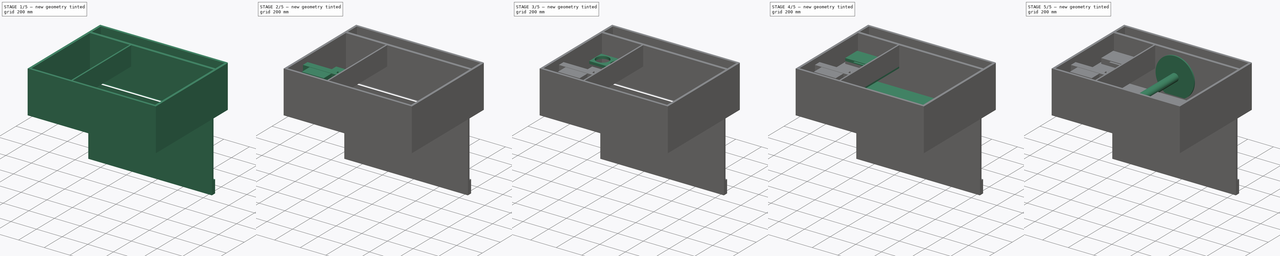
[diagram: build sequence overview — one tinted view per stage of 5, left to right]
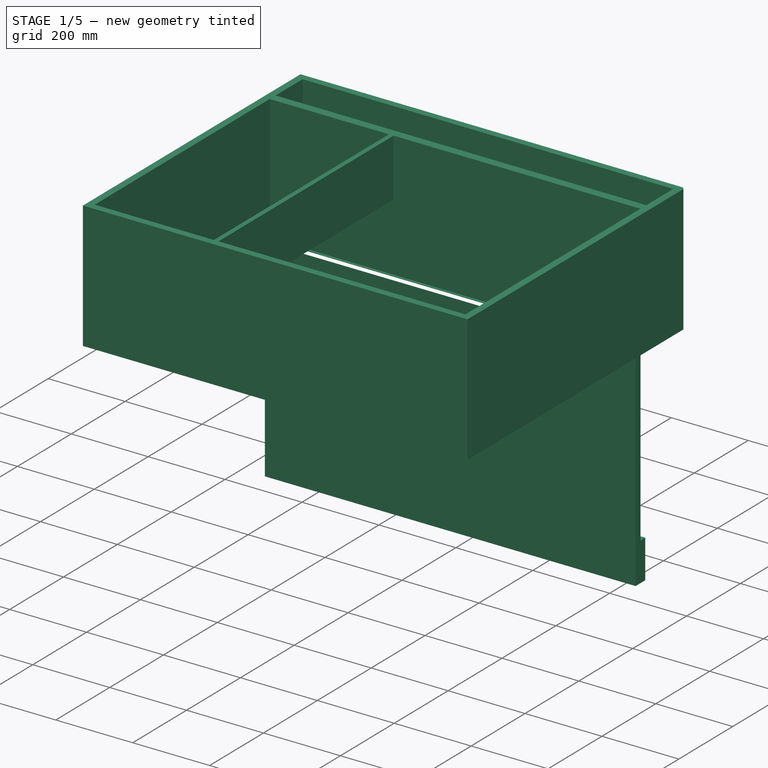
[diagram: stage 1 of 5 — iso view after this stage's code; geometry added in this stage tinted green]
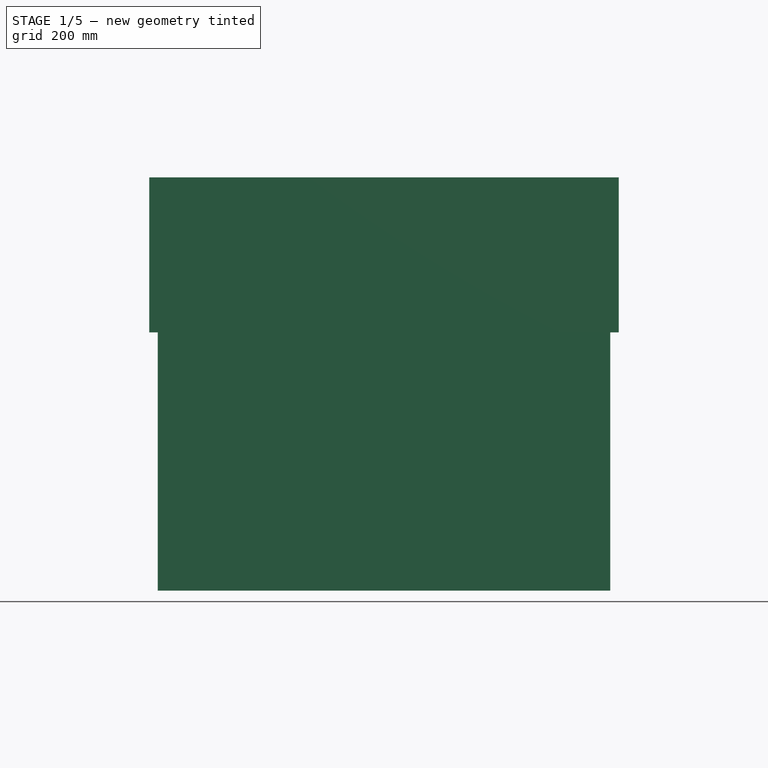
[diagram: stage 1 of 5 — front view after this stage's code; geometry added in this stage tinted green]
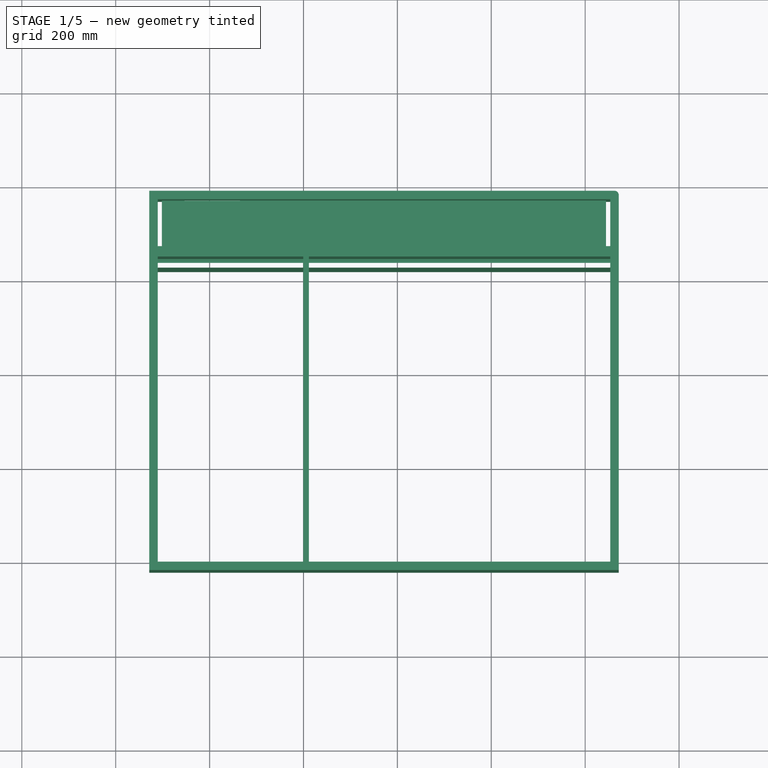
[diagram: stage 1 of 5 — top view after this stage's code; geometry added in this stage tinted green]
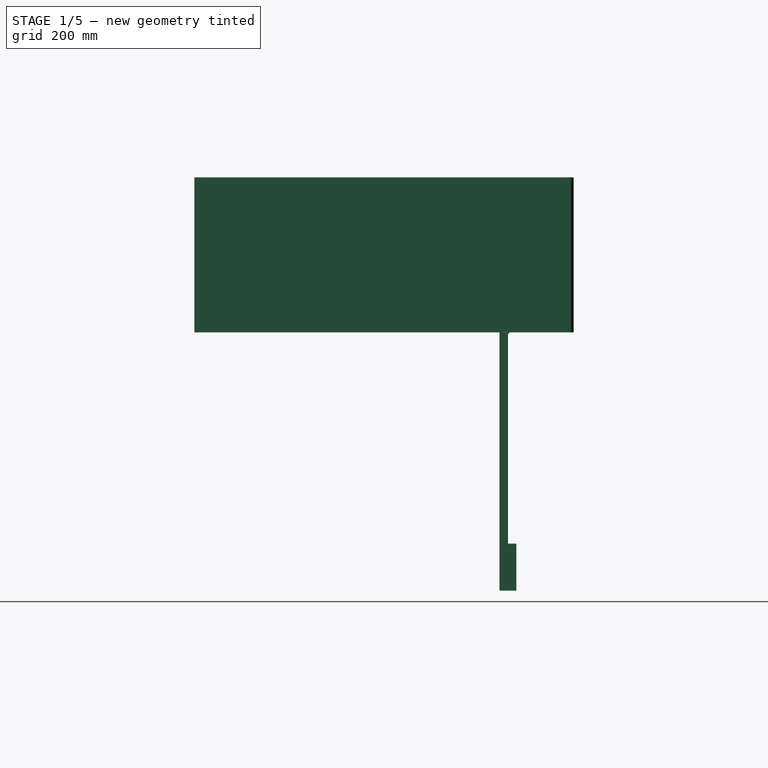
[diagram: stage 1 of 5 — right view after this stage's code; geometry added in this stage tinted green]
FCSTD DOCUMENT  (FreeCAD 0.18R16131 (Git))
Label: monitor
License: All rights reserved
LicenseURL: http://en.wikipedia.org/wiki/All_rights_reserved
objects: Sketcher::SketchObject×23, PartDesign::Pad×19, PartDesign::Body×10, PartDesign::ShapeBinder×9, PartDesign::Plane×4, App::Part×2, PartDesign::Chamfer×1, PartDesign::Pocket×1, Spreadsheet::Sheet×1, PartDesign::Fillet×1
note: 88 computed .brp shape members not serialized (recipe doc carries the construction recipe); baked Part::Feature solids carry a one-line shape summary decoded from their .brp

FEATURE [PartDesign::Body] Body010  label="PSU"
  Group = -> [CopyPad011004,Sketch025,Pad020]
  Origin = -> Origin012
  Tip = -> Pad020
FEATURE [App::Part] Part001  label="Kast"
  Group = -> [Body004,Body005,Body006,Body007,Body008,Body010]
  Origin = -> Origin005
FEATURE [PartDesign::Body] Body004  label="Kast001"
  Group = -> [CopyDatumPlane,Sketch005,DatumPlane001,CopyPad002,Sketch006,Pad003,Sketch008,Pad005,Sketch009,Pad004,Sketch010,Sketch011,Pad006,Sketch012,Pad007,Sketch015,Pad010,Fillet]
  Origin = -> Origin006
  Tip = -> Fillet
FEATURE [PartDesign::Pad] Pad004  label="foldDesk"
  BaseFeature = -> Pad005
  Length = 18
  Length2 = 100
  Placement = pos=(371.5,638,-80) rot=(1,0,0;3.14159rad)
  Profile = -> Sketch009
  Reversed = true
  Type = 0
  expr: Length = Globals.PlankThickness
FEATURE [Sketcher::SketchObject] Sketch010  label="mainHinge"
  MapMode = 5
  Placement = pos=(-110.5,638,-80) rot=(0.57735,-0.57735,0.57735;4.18879rad)
  Support = -> [Pad004]
  sketch-geometry (1):
    g0: Circle CenterX=0 CenterY=0 CenterZ=0 NormalX=0 NormalY=0 NormalZ=1 AngleXU=0 Radius=3
  constraints (2):
    c: Coincident(g0,g-1)
    c: Radius(g0) = 3
FEATURE [PartDesign::Pad] Pad005  label="mainHinge001"
  BaseFeature = -> Pad003
  Length = 10
  Length2 = 100
  Placement = pos=(371.5,638,-80) rot=(1,0,0;3.14159rad)
  Profile = -> Sketch010
  Type = 3
  UpToFace = -> Pad003 [Face7]
FEATURE [Sketcher::SketchObject] Sketch011  label="flipEdge001"
  ExternalGeometry = -> [Pad004]
  MapMode = 5
  Placement = pos=(853.5,638,-80) rot=(0.57735,-0.57735,0.57735;4.18879rad)
  Support = -> [Pad004]
  expr: Constraints[10] = flipEdge.Constraints.flipEdgeLength
  expr: Constraints[9] = Globals.PlankThickness
  sketch-geometry (4):
    g0: LineSegment StartX=-1.137e-13 StartY=450 StartZ=0 EndX=-18 EndY=450 EndZ=0
    g1: LineSegment StartX=-18 StartY=450 StartZ=0 EndX=-18 EndY=550 EndZ=0
    g2: LineSegment StartX=-18 StartY=550 StartZ=0 EndX=-1.137e-13 EndY=550 EndZ=0
    g3: LineSegment StartX=-1.137e-13 StartY=550 StartZ=0 EndX=-1.137e-13 EndY=450 EndZ=0
  constraints (11):
    c: Coincident(g0,g1)
    c: Coincident(g1,g2)
    c: Coincident(g2,g3)
    c: Coincident(g3,g0)
    c: Horizontal(g0)
    c: Horizontal(g2)
    c: Vertical(g1)
    c: Vertical(g3)
    c: Coincident(g2,g-3)
    c: Distance(g2) = 18
    c: Distance(g1) = 100
FEATURE [PartDesign::Pad] Pad006
  BaseFeature = -> Pad004
  Length = 10
  Length2 = 100
  Placement = pos=(371.5,638,-80) rot=(1,0,0;3.14159rad)
  Profile = -> Sketch011
  Reversed = true
  Type = 3
  UpToFace = -> Pad004 [Face12]
FEATURE [Sketcher::SketchObject] Sketch012
  ExternalGeometry = -> [Pad006]
  MapMode = 5
  Placement = pos=(371.5,760,-80) rot=(0,0.707107,-0.707107;3.14159rad)
  Support = -> [Pad006]
  expr: Constraints[39] = Constraints.innerLengthLong
  expr: Constraints[38] = Constraints.supportLengthLeft
  expr: Constraints[26] = Constraints.innerLengthShort
  expr: Constraints.innerLengthShort = Constraints.hingeOffsetSmall - Globals.PlankThickness / 2
  expr: Constraints.innerLengthLong = Constraints.hingeOffset - Globals.PlankThickness / 2
  expr: Constraints[36] = Globals.PlankThickness
  expr: Constraints[27] = Globals.PlankThickness
  expr: Constraints[28] = Constraints.supportLengthRight
  expr: Constraints.hingeOffsetSmall = Constraints.hingeOffset - Globals.PlankThickness
  expr: Constraints[13] = Globals.PlankThickness
  expr: Constraints.hingeOffset = (Sketch006.Constraints.mainInnerWidth - Constraints.supportLengthLeft) / 2 - Globals.PlankThickness
  expr: Constraints.supportLengthRight = Constraints.supportLengthLeft + Globals.PlankThickness
  expr: Constraints.supportLengthLeft = deskPlate.Constraints.deskDepth + Constraints.doorInset - 50mm
  sketch-geometry (14):
    g0: LineSegment [constr] StartX=-482 StartY=-150 StartZ=0 EndX=482 EndY=-150 EndZ=0
    g1: Circle [constr] CenterX=343 CenterY=-150 CenterZ=0 NormalX=0 NormalY=0 NormalZ=1 AngleXU=0 Radius=650
    g2: Circle [constr] CenterX=343 CenterY=-150 CenterZ=0 NormalX=0 NormalY=0 NormalZ=1 AngleXU=0 Radius=130
    g3: LineSegment [constr] StartX=-482 StartY=-168 StartZ=0 EndX=482 EndY=-168 EndZ=0
    g4: Circle [constr] CenterX=-361 CenterY=-168 CenterZ=0 NormalX=0 NormalY=0 NormalZ=1 AngleXU=0 Radius=668
    g5: Circle [constr] CenterX=-361 CenterY=-168 CenterZ=0 NormalX=0 NormalY=0 NormalZ=1 AngleXU=0 Radius=112
    g6: LineSegment StartX=-473 StartY=-159 StartZ=0 EndX=307 EndY=-159 EndZ=0
    g7: LineSegment StartX=307 StartY=-159 StartZ=0 EndX=307 EndY=-177 EndZ=0
    g8: LineSegment StartX=307 StartY=-177 StartZ=0 EndX=-473 EndY=-177 EndZ=0
    g9: LineSegment StartX=-473 StartY=-177 StartZ=0 EndX=-473 EndY=-159 EndZ=0
    g10: LineSegment StartX=-307 StartY=-141 StartZ=0 EndX=473 EndY=-141 EndZ=0
    g11: LineSegment StartX=473 StartY=-141 StartZ=0 EndX=473 EndY=-159 EndZ=0
    g12: LineSegment StartX=473 StartY=-159 StartZ=0 EndX=-307 EndY=-159 EndZ=0
    g13: LineSegment StartX=-307 StartY=-159 StartZ=0 EndX=-307 EndY=-141 EndZ=0
  constraints (40):
    c: PointOnObject(g0,g-5)
    c: Horizontal(g0)
    c: Distance(g0,g-4) = 150  'doorInset'
    c: PointOnObject(g0,g-3)
    c: PointOnObject(g1,g0)
    c: Radius(g1) = 650  'supportLengthLeft'
    c: Distance(g1,g-5) = 139  'hingeOffset'
    c: Coincident(g1,g2)
    c: PointOnObject(g3,g-3)
    c: PointOnObject(g3,g-5)
    c: Horizontal(g3)
    c: PointOnObject(g4,g3)
    c: Radius(g4) = 668  'supportLengthRight'
    c: Distance(g3,g0) = 18
    c: Radius(g2) = 130  'innerLengthLong'
    c: Distance(g4,g3) = 121  'hingeOffsetSmall'
    c: Coincident(g5,g4)
    c: Radius(g5) = 112  'innerLengthShort'
    c: Coincident(g6,g7)
    c: Coincident(g7,g8)
    c: Coincident(g8,g9)
    c: Coincident(g9,g6)
    c: Horizontal(g6)
    c: Horizontal(g8)
    c: Vertical(g9)
    c: Symmetric(g7,g6,g3)
    c: Distance(g4,g9) = 112
    c: Distance(g9) = 18
    c: Distance(g4,g7) = 668
    c: Coincident(g10,g11)
    c: Coincident(g11,g12)
    c: Coincident(g12,g13)
    c: Coincident(g13,g10)
    c: Horizontal(g10)
    c: Horizontal(g12)
    c: Vertical(g11)
    c: Distance(g11) = 18
    c: Symmetric(g12,g10,g0)
    c: Distance(g1,g13) = 650
    c: Distance(g1,g11) = 130
FEATURE [PartDesign::Pad] Pad007
  BaseFeature = -> Pad006
  Length = 10
  Length2 = 100
  Placement = pos=(371.5,638,-80) rot=(1,0,0;3.14159rad)
  Profile = -> Sketch012
  Type = 2
FEATURE [PartDesign::Pad] Pad010
  BaseFeature = -> Pad007
  Length = 150
  Length2 = 100
  Placement = pos=(371.5,638,-80) rot=(1,0,0;3.14159rad)
  Profile = -> Sketch015
  Reversed = true
  Type = 0
FEATURE [PartDesign::Fillet] Fillet
  Base = -> Pad010 [Edge8]
  BaseFeature = -> Pad010
  Placement = pos=(371.5,638,-80) rot=(1,0,0;3.14159rad)
  Radius = 9
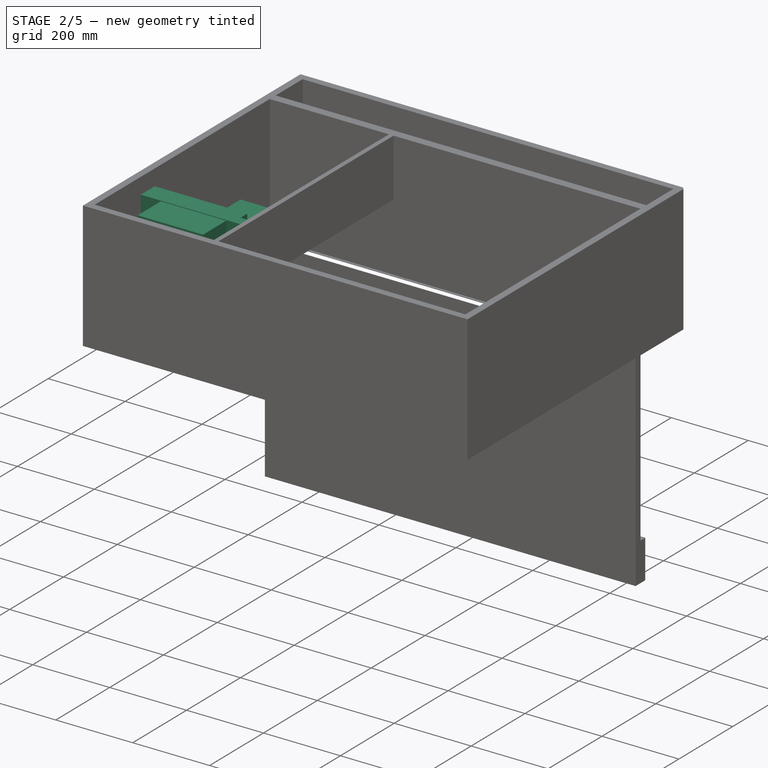
[diagram: stage 2 of 5 — iso view after this stage's code; geometry added in this stage tinted green]
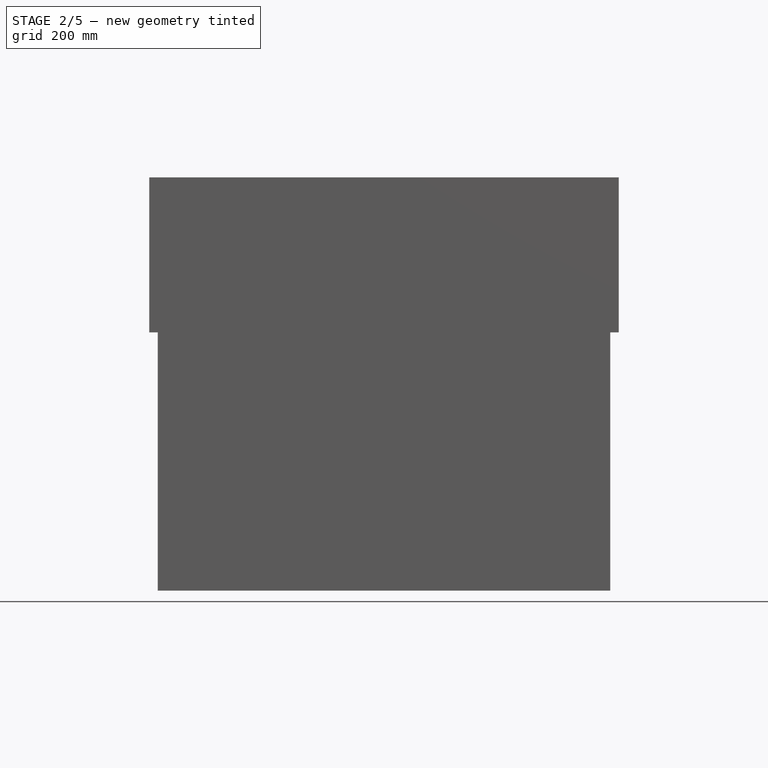
[diagram: stage 2 of 5 — front view after this stage's code; geometry added in this stage tinted green]
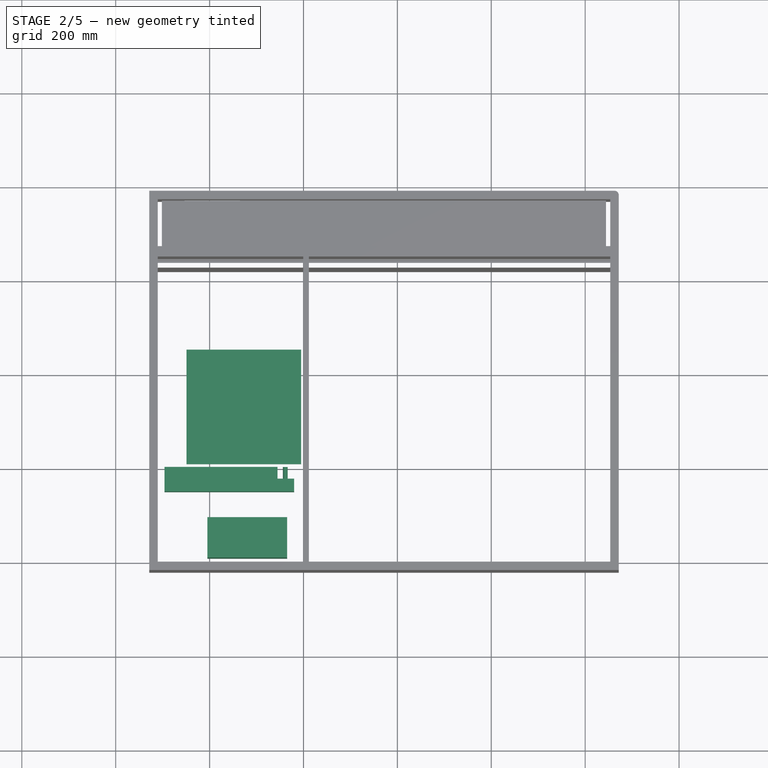
[diagram: stage 2 of 5 — top view after this stage's code; geometry added in this stage tinted green]
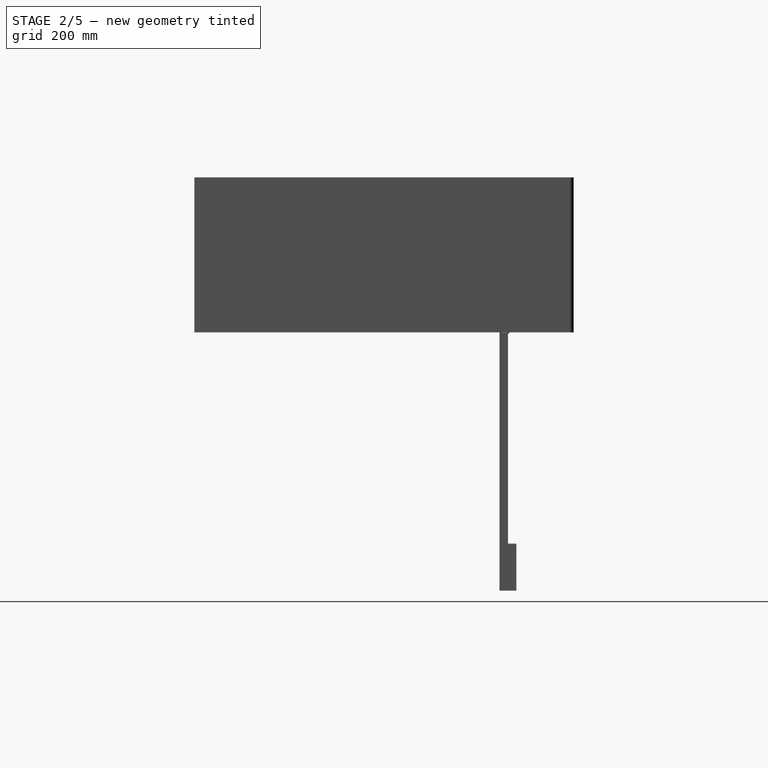
[diagram: stage 2 of 5 — right view after this stage's code; geometry added in this stage tinted green]
FEATURE [PartDesign::ShapeBinder] CopyPad011001
  Placement = pos=(371.5,638,-80) rot=(1,0,0;3.14159rad)
  TraceSupport = false
FEATURE [PartDesign::Body] Body006  label="GPU"
  Group = -> [CopyPad011,Sketch017,Pad012,Sketch018,Pad013,Sketch019,Pad014,CopyPad011001]
  Origin = -> Origin008
  Tip = -> Pad014
FEATURE [PartDesign::ShapeBinder] CopyPad011002
  Placement = pos=(371.5,638,-80) rot=(1,0,0;3.14159rad)
  TraceSupport = false
FEATURE [Sketcher::SketchObject] Sketch020
  MapMode = 5
  Placement = pos=(371.5,638,100) rot=(0,0,1;0rad)
  Support = -> [CopyPad011002]
  expr: Constraints[9] = Globals.MOBOWidth
  expr: Constraints[8] = Globals.MOBOWidth
  sketch-geometry (4):
    g0: LineSegment StartX=-420.637 StartY=-195.95 StartZ=0 EndX=-176.637 EndY=-195.95 EndZ=0
    g1: LineSegment StartX=-176.637 StartY=-195.95 StartZ=0 EndX=-176.637 EndY=-439.95 EndZ=0
    g2: LineSegment StartX=-176.637 StartY=-439.95 StartZ=0 EndX=-420.637 EndY=-439.95 EndZ=0
    g3: LineSegment StartX=-420.637 StartY=-439.95 StartZ=0 EndX=-420.637 EndY=-195.95 EndZ=0
  constraints (10):
    c: Coincident(g0,g1)
    c: Coincident(g1,g2)
    c: Coincident(g2,g3)
    c: Coincident(g3,g0)
    c: Horizontal(g0)
    c: Horizontal(g2)
    c: Vertical(g1)
    c: Vertical(g3)
    c: Distance(g3) = 244
    c: Distance(g2) = 244
FEATURE [PartDesign::Pad] Pad015
  Length = 5
  Length2 = 100
  Placement = pos=(371.5,638,-80) rot=(1,0,0;3.14159rad)
  Profile = -> Sketch020
  Type = 0
FEATURE [PartDesign::Body] Body007  label="MOBO"
  Group = -> [CopyPad011002,Sketch020,Pad015,Sketch021,Pad016,Sketch022,Pad017]
  Origin = -> Origin009
  Tip = -> Pad017
FEATURE [PartDesign::ShapeBinder] CopyPad011003
  Placement = pos=(371.5,638,-80) rot=(1,0,0;3.14159rad)
  TraceSupport = false
FEATURE [Sketcher::SketchObject] Sketch023
  MapMode = 5
  Placement = pos=(371.5,638,100) rot=(0,0,1;0rad)
  Support = -> [CopyPad011003]
  expr: Constraints[9] = Globals.RadiatorLength
  expr: Constraints[8] = Globals.RadiatorHeight
  sketch-geometry (4):
    g0: LineSegment StartX=-467.531 StartY=-472.774 StartZ=0 EndX=-191.531 EndY=-472.774 EndZ=0
    g1: LineSegment StartX=-191.531 StartY=-472.774 StartZ=0 EndX=-191.531 EndY=-499.774 EndZ=0
    g2: LineSegment StartX=-191.531 StartY=-499.774 StartZ=0 EndX=-467.531 EndY=-499.774 EndZ=0
    g3: LineSegment StartX=-467.531 StartY=-499.774 StartZ=0 EndX=-467.531 EndY=-472.774 EndZ=0
  constraints (10):
    c: Coincident(g0,g1)
    c: Coincident(g1,g2)
    c: Coincident(g2,g3)
    c: Coincident(g3,g0)
    c: Horizontal(g0)
    c: Horizontal(g2)
    c: Vertical(g1)
    c: Vertical(g3)
    c: Distance(g3) = 27
    c: Distance(g2) = 276
FEATURE [PartDesign::Pad] Pad018
  Length = 120
  Length2 = 100
  Placement = pos=(371.5,638,-80) rot=(1,0,0;3.14159rad)
  Profile = -> Sketch023
  Type = 0
  expr: Length = Globals.RadiatorWidth
FEATURE [Sketcher::SketchObject] Sketch024
  ExternalGeometry = -> [Pad018]
  MapMode = 5
  Placement = pos=(371.5,165.226,-80) rot=(-1,0,0;1.5708rad)
  Support = -> [Pad018]
  sketch-geometry (6):
    g0: Circle CenterX=-210.364 CenterY=-278.744 CenterZ=0 NormalX=0 NormalY=0 NormalZ=1 AngleXU=0 Radius=5
    g1: Circle CenterX=-210.255 CenterY=-238.742 CenterZ=0 NormalX=0 NormalY=0 NormalZ=1 AngleXU=0 Radius=5
    g2: LineSegment StartX=-467.531 StartY=-180 StartZ=0 EndX=-226.803 EndY=-180 EndZ=0
    g3: LineSegment StartX=-226.803 StartY=-180 StartZ=0 EndX=-226.803 EndY=-300 EndZ=0
    g4: LineSegment StartX=-226.803 StartY=-300 StartZ=0 EndX=-467.531 EndY=-300 EndZ=0
    g5: LineSegment StartX=-467.531 StartY=-300 StartZ=0 EndX=-467.531 EndY=-180 EndZ=0
  constraints (12):
    c: Coincident(g2,g3)
    c: Coincident(g3,g4)
    c: Coincident(g4,g5)
    c: Coincident(g5,g2)
    c: Horizontal(g2)
    c: Horizontal(g4)
    c: Vertical(g3)
    c: Vertical(g5)
    c: Coincident(g2,g-3)
    c: PointOnObject(g3,g-4)
    c: Radius(g0) = 5
    c: Radius(g1) = 5
FEATURE [PartDesign::Pad] Pad019
  BaseFeature = -> Pad018
  Length = 25
  Length2 = 100
  Placement = pos=(371.5,638,-80) rot=(1,0,0;3.14159rad)
  Profile = -> Sketch024
  Type = 0
  expr: Length = Globals.RadiatorFanHeight
FEATURE [PartDesign::Body] Body008  label="Cooling"
  Group = -> [CopyPad011003,Sketch023,Pad018,Sketch024,Pad019]
  Origin = -> Origin010
  Placement = pos=(0,303,6.7e-14) rot=(1,0,0;1.5708rad)
  Tip = -> Pad019
FEATURE [PartDesign::ShapeBinder] CopyPad011004
  Placement = pos=(371.5,638,-80) rot=(1,0,0;3.14159rad)
  TraceSupport = false
FEATURE [Sketcher::SketchObject] Sketch025
  MapMode = 5
  Placement = pos=(371.5,638,100) rot=(0,0,1;0rad)
  Support = -> [CopyPad011004]
  expr: Constraints[9] = Globals.PSUHeight
  expr: Constraints[8] = Globals.PSUDepth
  sketch-geometry (4):
    g0: LineSegment StartX=-376.219 StartY=-555.329 StartZ=0 EndX=-206.219 EndY=-555.329 EndZ=0
    g1: LineSegment StartX=-206.219 StartY=-555.329 StartZ=0 EndX=-206.219 EndY=-641.329 EndZ=0
    g2: LineSegment StartX=-206.219 StartY=-641.329 StartZ=0 EndX=-376.219 EndY=-641.329 EndZ=0
    g3: LineSegment StartX=-376.219 StartY=-641.329 StartZ=0 EndX=-376.219 EndY=-555.329 EndZ=0
  constraints (10):
    c: Coincident(g0,g1)
    c: Coincident(g1,g2)
    c: Coincident(g2,g3)
    c: Coincident(g3,g0)
    c: Horizontal(g0)
    c: Horizontal(g2)
    c: Vertical(g1)
    c: Vertical(g3)
    c: Distance(g2) = 170
    c: Distance(g3) = 86
FEATURE [PartDesign::Pad] Pad020
  Length = 150
  Length2 = 100
  Placement = pos=(371.5,638,-80) rot=(1,0,0;3.14159rad)
  Profile = -> Sketch025
  Type = 0
  expr: Length = Globals.PSULength
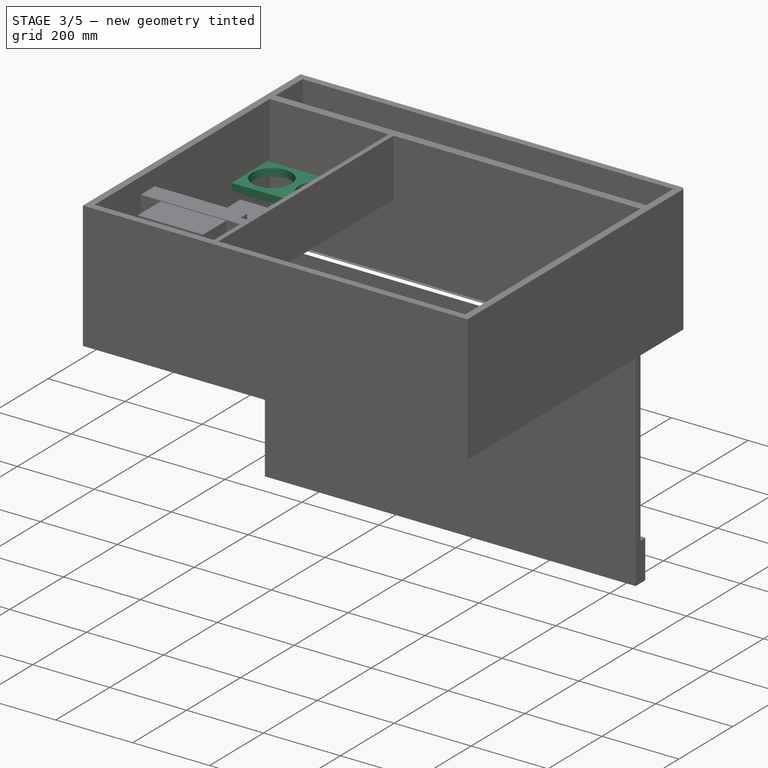
[diagram: stage 3 of 5 — iso view after this stage's code; geometry added in this stage tinted green]
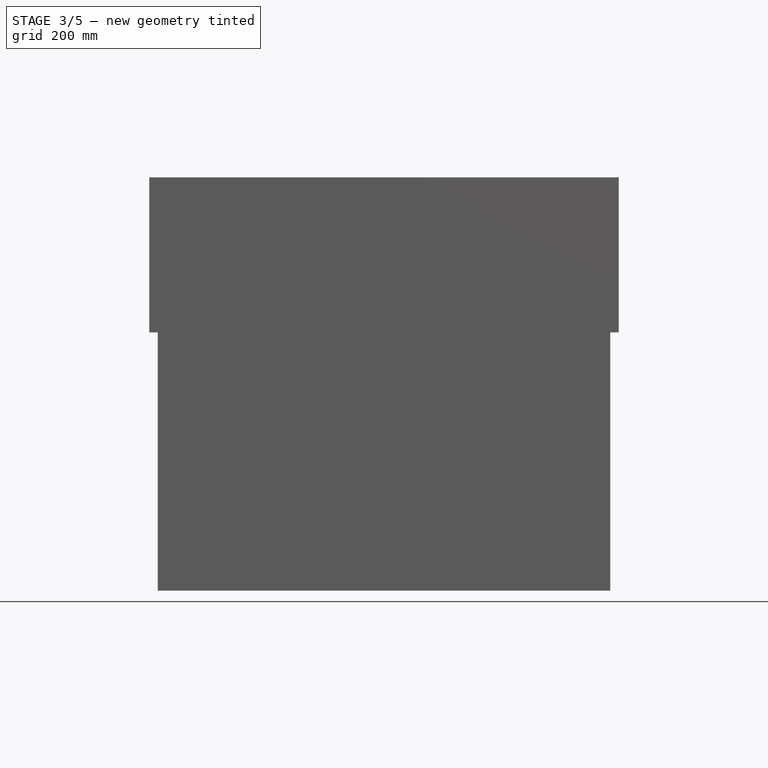
[diagram: stage 3 of 5 — front view after this stage's code; geometry added in this stage tinted green]
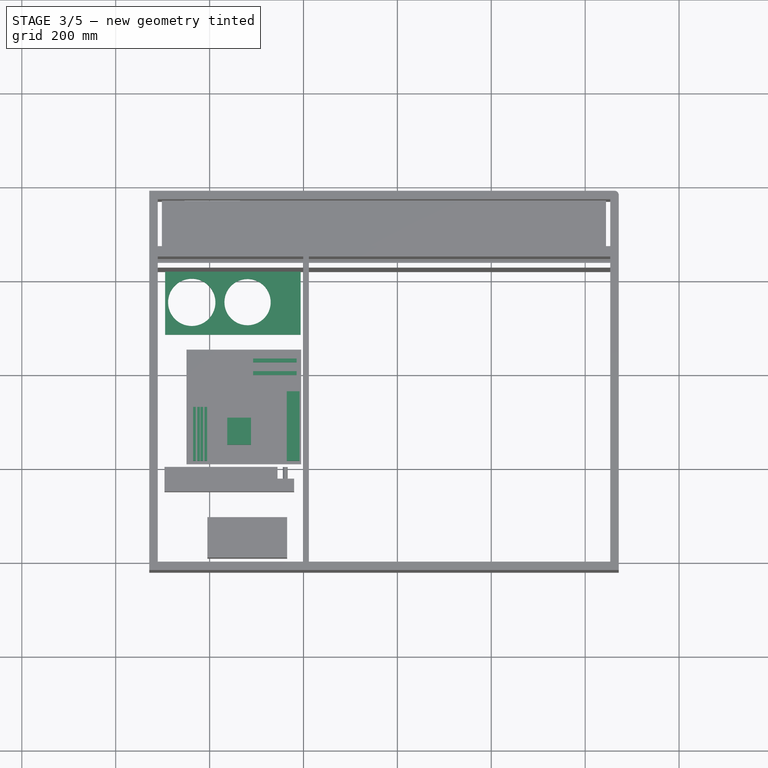
[diagram: stage 3 of 5 — top view after this stage's code; geometry added in this stage tinted green]
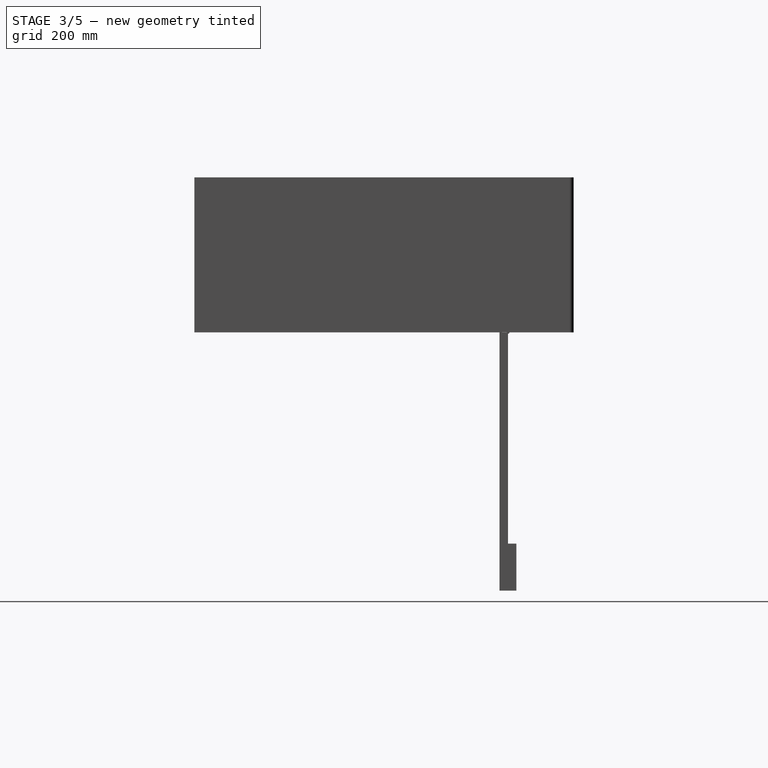
[diagram: stage 3 of 5 — right view after this stage's code; geometry added in this stage tinted green]
FEATURE [PartDesign::Body] Body005  label="PCDoor"
  Group = -> [CopyPad010,Sketch016,CopyPad010001,DatumPlane002,CopyPad010002,Pad011]
  Origin = -> Origin007
  Tip = -> Pad011
FEATURE [PartDesign::ShapeBinder] CopyPad011
  Placement = pos=(371.5,638,-80) rot=(1,0,0;3.14159rad)
  TraceSupport = false
FEATURE [Sketcher::SketchObject] Sketch017
  MapMode = 5
  Placement = pos=(371.5,638,100) rot=(0,0,1;0rad)
  Support = -> [CopyPad011]
  expr: Constraints[9] = Globals.GPUHeight
  expr: Constraints[8] = Globals.GPULength
  sketch-geometry (6):
    g0: LineSegment StartX=-177.482 StartY=-30 StartZ=0 EndX=-466.082 EndY=-30 EndZ=0
    g1: LineSegment StartX=-466.082 StartY=-30 StartZ=0 EndX=-466.082 EndY=-164.4 EndZ=0
    g2: LineSegment StartX=-466.082 StartY=-164.4 StartZ=0 EndX=-177.482 EndY=-164.4 EndZ=0
    g3: LineSegment StartX=-177.482 StartY=-164.4 StartZ=0 EndX=-177.482 EndY=-30 EndZ=0
    g4: Circle CenterX=-290.642 CenterY=-94.95 CenterZ=0 NormalX=0 NormalY=0 NormalZ=1 AngleXU=0 Radius=49.2683
    g5: Circle CenterX=-409.492 CenterY=-95.39 CenterZ=0 NormalX=0 NormalY=0 NormalZ=1 AngleXU=0 Radius=50.4101
  constraints (15):
    c: Coincident(g0,g1)
    c: Coincident(g1,g2)
    c: Coincident(g2,g3)
    c: Coincident(g3,g0)
    c: Horizontal(g0)
    c: Horizontal(g2)
    c: Vertical(g1)
    c: Vertical(g3)
    c: Distance(g2) = 288.6
    c: Distance(g3) = 134.4
    c: DistanceY(g-1,g0) = -30
    c: Distance(g5,g1) = 56.59
    c: Distance(g5,g0) = 65.39
    c: Distance(g4,g0) = 64.95
    c: Distance(g4,g3) = 113.16
FEATURE [PartDesign::Pad] Pad012
  Length = 20
  Length2 = 100
  Placement = pos=(371.5,638,-80) rot=(1,0,0;3.14159rad)
  Profile = -> Sketch017
  Type = 0
FEATURE [Sketcher::SketchObject] Sketch021
  MapMode = 5
  Placement = pos=(371.5,638,105) rot=(0,0,1;0rad)
  Support = -> [Pad015]
  sketch-geometry (24):
    g0: LineSegment StartX=-207.087 StartY=-285.234 StartZ=0 EndX=-179.953 EndY=-285.234 EndZ=0
    g1: LineSegment StartX=-179.953 StartY=-285.234 StartZ=0 EndX=-179.953 EndY=-433.104 EndZ=0
    g2: LineSegment StartX=-179.953 StartY=-433.104 StartZ=0 EndX=-207.087 EndY=-433.104 EndZ=0
    g3: LineSegment StartX=-207.087 StartY=-433.104 StartZ=0 EndX=-207.087 EndY=-285.234 EndZ=0
    g4: LineSegment StartX=-333.909 StartY=-341.368 StartZ=0 EndX=-283.319 EndY=-341.368 EndZ=0
    g5: LineSegment StartX=-283.319 StartY=-341.368 StartZ=0 EndX=-283.319 EndY=-398.889 EndZ=0
    g6: LineSegment StartX=-283.319 StartY=-398.889 StartZ=0 EndX=-333.909 EndY=-398.889 EndZ=0
    g7: LineSegment StartX=-333.909 StartY=-398.889 StartZ=0 EndX=-333.909 EndY=-341.368 EndZ=0
    g8: LineSegment StartX=-406.476 StartY=-318.462 StartZ=0 EndX=-400.848 EndY=-318.462 EndZ=0
    g9: LineSegment StartX=-400.848 StartY=-318.462 StartZ=0 EndX=-400.848 EndY=-433.104 EndZ=0
    g10: LineSegment StartX=-400.848 StartY=-433.104 StartZ=0 EndX=-406.476 EndY=-433.104 EndZ=0
    g11: LineSegment StartX=-406.476 StartY=-433.104 StartZ=0 EndX=-406.476 EndY=-318.462 EndZ=0
    g12: LineSegment StartX=-397.805 StartY=-318.427 StartZ=0 EndX=-392.177 EndY=-318.427 EndZ=0
    g13: LineSegment StartX=-392.177 StartY=-318.427 StartZ=0 EndX=-392.177 EndY=-433.069 EndZ=0
    g14: LineSegment StartX=-392.177 StartY=-433.069 StartZ=0 EndX=-397.805 EndY=-433.069 EndZ=0
    g15: LineSegment StartX=-397.805 StartY=-433.069 StartZ=0 EndX=-397.805 EndY=-318.427 EndZ=0
    g16: LineSegment StartX=-390.925 StartY=-318.448 StartZ=0 EndX=-385.297 EndY=-318.448 EndZ=0
    g17: LineSegment StartX=-385.297 StartY=-318.448 StartZ=0 EndX=-385.297 EndY=-433.09 EndZ=0
    g18: LineSegment StartX=-385.297 StartY=-433.09 StartZ=0 EndX=-390.925 EndY=-433.09 EndZ=0
    g19: LineSegment StartX=-390.925 StartY=-433.09 StartZ=0 EndX=-390.925 EndY=-318.448 EndZ=0
    g20: LineSegment StartX=-382.254 StartY=-318.413 StartZ=0 EndX=-376.626 EndY=-318.413 EndZ=0
    g21: LineSegment StartX=-376.626 StartY=-318.413 StartZ=0 EndX=-376.626 EndY=-433.055 EndZ=0
    g22: LineSegment StartX=-376.626 StartY=-433.055 StartZ=0 EndX=-382.254 EndY=-433.055 EndZ=0
    g23: LineSegment StartX=-382.254 StartY=-433.055 StartZ=0 EndX=-382.254 EndY=-318.413 EndZ=0
  constraints (48):
    c: Coincident(g0,g1)
    c: Coincident(g1,g2)
    c: Coincident(g2,g3)
    c: Coincident(g3,g0)
    c: Horizontal(g0)
    c: Horizontal(g2)
    c: Vertical(g1)
    c: Vertical(g3)
    c: Coincident(g4,g5)
    c: Coincident(g5,g6)
    c: Coincident(g6,g7)
    c: Coincident(g7,g4)
    c: Horizontal(g4)
    c: Horizontal(g6)
    c: Vertical(g5)
    c: Vertical(g7)
    c: Coincident(g8,g9)
    c: Coincident(g9,g10)
    c: Coincident(g10,g11)
    c: Coincident(g11,g8)
    c: Horizontal(g8)
    c: Horizontal(g10)
    c: Vertical(g9)
    c: Vertical(g11)
    c: Coincident(g12,g13)
    c: Coincident(g13,g14)
    c: Coincident(g14,g15)
    c: Coincident(g15,g12)
    c: Horizontal(g12)
    c: Horizontal(g14)
    c: Vertical(g13)
    c: Vertical(g15)
    c: Coincident(g16,g17)
    c: Coincident(g17,g18)
    c: Coincident(g18,g19)
    c: Coincident(g19,g16)
    c: Horizontal(g16)
    c: Horizontal(g18)
    c: Vertical(g17)
    c: Vertical(g19)
    c: Coincident(g20,g21)
    c: Coincident(g21,g22)
    c: Coincident(g22,g23)
    c: Coincident(g23,g20)
    c: Horizontal(g20)
    c: Horizontal(g22)
    c: Vertical(g21)
    c: Vertical(g23)
FEATURE [PartDesign::Pad] Pad016
  BaseFeature = -> Pad015
  Length = 30
  Length2 = 100
  Placement = pos=(371.5,638,-80) rot=(1,0,0;3.14159rad)
  Profile = -> Sketch021
  Type = 0
FEATURE [Sketcher::SketchObject] Sketch022
  MapMode = 5
  Placement = pos=(371.5,638,105) rot=(0,0,1;0rad)
  Support = -> [Pad016]
  sketch-geometry (8):
    g0: LineSegment StartX=-278.717 StartY=-215.07 StartZ=0 EndX=-186.141 EndY=-215.07 EndZ=0
    g1: LineSegment StartX=-186.141 StartY=-215.07 StartZ=0 EndX=-186.141 EndY=-223.397 EndZ=0
    g2: LineSegment StartX=-186.141 StartY=-223.397 StartZ=0 EndX=-278.717 EndY=-223.397 EndZ=0
    g3: LineSegment StartX=-278.717 StartY=-223.397 StartZ=0 EndX=-278.717 EndY=-215.07 EndZ=0
    g4: LineSegment StartX=-278.717 StartY=-242.01 StartZ=0 EndX=-186.141 EndY=-242.01 EndZ=0
    g5: LineSegment StartX=-186.141 StartY=-242.01 StartZ=0 EndX=-186.141 EndY=-250.337 EndZ=0
    g6: LineSegment StartX=-186.141 StartY=-250.337 StartZ=0 EndX=-278.717 EndY=-250.337 EndZ=0
    g7: LineSegment StartX=-278.717 StartY=-250.337 StartZ=0 EndX=-278.717 EndY=-242.01 EndZ=0
  constraints (16):
    c: Coincident(g0,g1)
    c: Coincident(g1,g2)
    c: Coincident(g2,g3)
    c: Coincident(g3,g0)
    c: Horizontal(g0)
    c: Horizontal(g2)
    c: Vertical(g1)
    c: Vertical(g3)
    c: Coincident(g4,g5)
    c: Coincident(g5,g6)
    c: Coincident(g6,g7)
    c: Coincident(g7,g4)
    c: Horizontal(g4)
    c: Horizontal(g6)
    c: Vertical(g5)
    c: Vertical(g7)
FEATURE [PartDesign::Pad] Pad017
  BaseFeature = -> Pad016
  Length = 15
  Length2 = 100
  Placement = pos=(371.5,638,-80) rot=(1,0,0;3.14159rad)
  Profile = -> Sketch022
  Type = 0
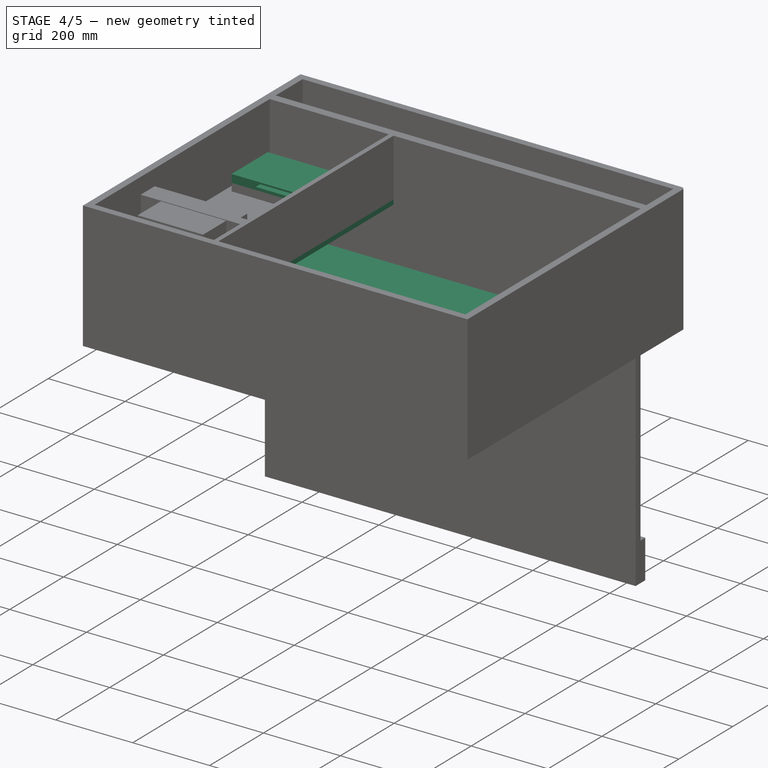
[diagram: stage 4 of 5 — iso view after this stage's code; geometry added in this stage tinted green]
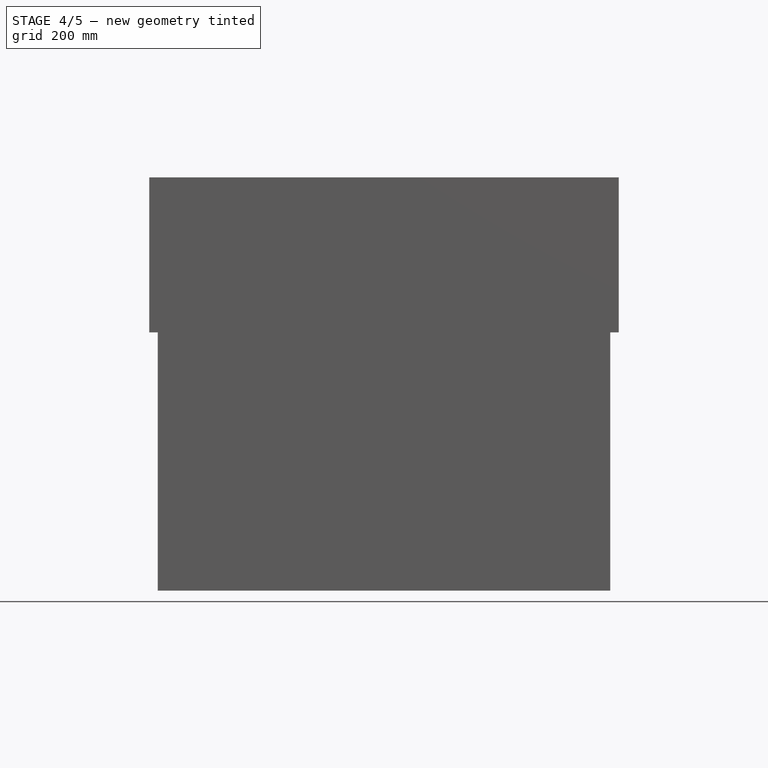
[diagram: stage 4 of 5 — front view after this stage's code; geometry added in this stage tinted green]
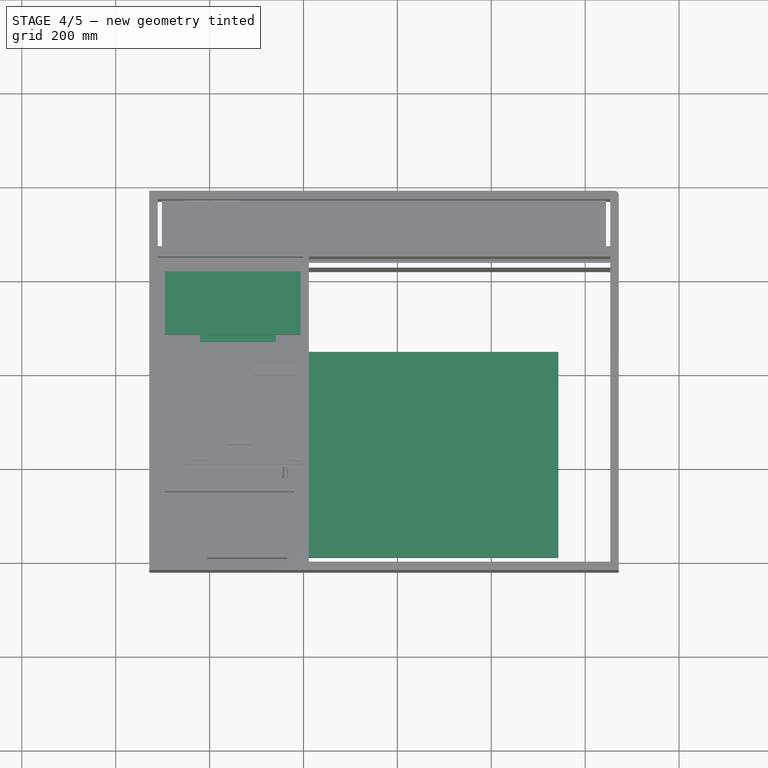
[diagram: stage 4 of 5 — top view after this stage's code; geometry added in this stage tinted green]
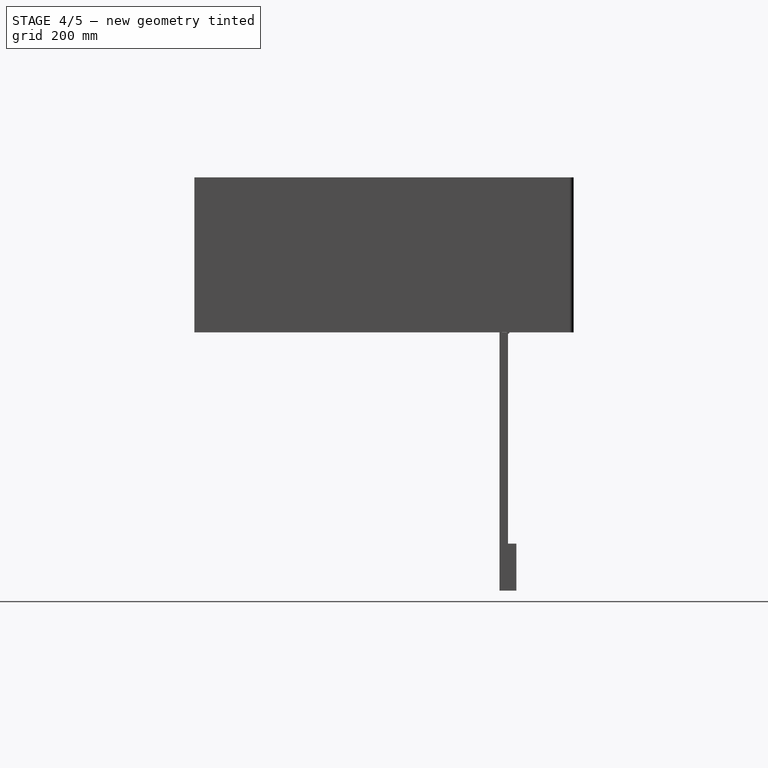
[diagram: stage 4 of 5 — right view after this stage's code; geometry added in this stage tinted green]
FEATURE [Sketcher::SketchObject] Sketch
  MapMode = 5
  Support = -> [XY_Plane001]
  sketch-geometry (4):
    g0: LineSegment StartX=0 StartY=0 StartZ=0 EndX=743 EndY=0 EndZ=0
    g1: LineSegment StartX=743 StartY=0 StartZ=0 EndX=743 EndY=438 EndZ=0
    g2: LineSegment StartX=743 StartY=438 StartZ=0 EndX=0 EndY=438 EndZ=0
    g3: LineSegment StartX=0 StartY=438 StartZ=0 EndX=0 EndY=0 EndZ=0
  constraints (11):
    c: Coincident(g0,g1)
    c: Coincident(g1,g2)
    c: Coincident(g2,g3)
    c: Coincident(g3,g0)
    c: Horizontal(g0)
    c: Horizontal(g2)
    c: Vertical(g1)
    c: Vertical(g3)
    c: Coincident(g0,g-1)
    c: Distance(g2) = 743  'screenWidth'
    c: Distance(g3) = 438  'screenHeight'
FEATURE [PartDesign::Pad] Pad
  Length = 63
  Length2 = 100
  Profile = -> Sketch
  Type = 0
FEATURE [PartDesign::Body] Body  label="Screen"
  Group = -> [Sketch,Pad,Chamfer,Sketch001,Pocket,Sketch002,DatumPlane,Sketch003,Sketch004,Pad001,Pad002]
  Origin = -> Origin001
  Tip = -> Pad002
FEATURE [PartDesign::Body] Body001
  Origin = -> Origin002
FEATURE [PartDesign::Body] Body002
  Origin = -> Origin003
FEATURE [PartDesign::Body] Body003
  Origin = -> Origin004
FEATURE [App::Part] Part
  Group = -> [Body,Body001,Body002,Body003]
  Origin = -> Origin
FEATURE [PartDesign::Plane] CopyDatumPlane
  Length = 776.862
  Placement = pos=(371.5,638,0) rot=(0,0.707107,0.707107;3.14159rad)
  ResizeMode = 0
  Width = 206.862
FEATURE [Sketcher::SketchObject] Sketch005
  MapMode = 5
  Placement = pos=(371.5,638,0) rot=(0,0.707107,0.707107;3.14159rad)
  Support = -> [CopyDatumPlane]
  sketch-geometry (1):
    g0: LineSegment StartX=0 StartY=0 StartZ=0 EndX=0 EndY=-80 EndZ=0
  constraints (3):
    c: Vertical(g0)
    c: Distance(g0) = 80
    c: Coincident(g0,g-1)
FEATURE [PartDesign::ShapeBinder] CopyPad002
  TraceSupport = false
FEATURE [PartDesign::Plane] DatumPlane001  label="FrontFace"
  Length = 848.945
  MapMode = 6
  Placement = pos=(371.5,638,-80) rot=(1,0,0;3.14159rad)
  ResizeMode = 0
  Support = -> [Sketch005,CopyPad002]
  Width = 783.945
FEATURE [Sketcher::SketchObject] Sketch006
  MapMode = 5
  Placement = pos=(371.5,638,-80) rot=(1,0,0;3.14159rad)
  Support = -> [DatumPlane001]
  expr: Constraints[27] = Globals.PlankThickness
  expr: Constraints[17] = Globals.PlankThickness
  expr: Constraints[16] = Globals.PlankThickness
  expr: Constraints[15] = Globals.PlankThickness
  sketch-geometry (12):
    g0: LineSegment StartX=-482 StartY=650 StartZ=0 EndX=482 EndY=650 EndZ=0
    g1: LineSegment StartX=482 StartY=650 StartZ=0 EndX=482 EndY=0 EndZ=0
    g2: LineSegment StartX=482 StartY=0 StartZ=0 EndX=-482 EndY=0 EndZ=0
    g3: LineSegment StartX=-482 StartY=0 StartZ=0 EndX=-482 EndY=650 EndZ=0
    g4: LineSegment StartX=-500 StartY=668 StartZ=0 EndX=500 EndY=668 EndZ=0
    g5: LineSegment StartX=500 StartY=668 StartZ=0 EndX=500 EndY=-140 EndZ=0
    g6: LineSegment StartX=-500 StartY=-140 StartZ=0 EndX=-500 EndY=668 EndZ=0
    g7: LineSegment StartX=-500 StartY=-140 StartZ=0 EndX=500 EndY=-140 EndZ=0
    g8: LineSegment StartX=-482 StartY=-22 StartZ=0 EndX=482 EndY=-22 EndZ=0
    g9: LineSegment StartX=482 StartY=-22 StartZ=0 EndX=482 EndY=-122 EndZ=0
    g10: LineSegment StartX=482 StartY=-122 StartZ=0 EndX=-482 EndY=-122 EndZ=0
    g11: LineSegment StartX=-482 StartY=-122 StartZ=0 EndX=-482 EndY=-22 EndZ=0
  constraints (35):
    c: Coincident(g0,g1)
    c: Coincident(g1,g2)
    c: Coincident(g2,g3)
    c: Coincident(g3,g0)
    c: Horizontal(g0)
    c: Vertical(g1)
    c: Vertical(g3)
    c: PointOnObject(g1,g-1)
    c: Symmetric(g2,g1,g-2)
    c: Distance(g1) = 650  'mainHeight'
    c: Coincident(g4,g5)
    c: Coincident(g6,g4)
    c: Horizontal(g4)
    c: Vertical(g5)
    c: Vertical(g6)
    c: Distance(g0,g5) = 18
    c: Distance(g0,g4) = 18
    c: Distance(g0,g6) = 18
    c: Horizontal(g5,g6)
    c: Coincident(g8,g9)
    c: Coincident(g9,g10)
    c: Coincident(g10,g11)
    c: Coincident(g11,g8)
    c: Horizontal(g8)
    c: Horizontal(g10)
    c: Tangent(g9,g1)
    c: Tangent(g11,g3)
    c: Distance(g7,g10) = 18
    c: Distance(g8,g2) = 22
    c: Coincident(g7,g6)
    c: Distance(g9) = 100
    c: Coincident(g7,g5)
    c: Distance(g4) = 1000
    c: Distance(g10) = 964  'mainInnerWidth'
    c: Distance(g5) = 808
FEATURE [Spreadsheet::Sheet] Spreadsheet  label="Globals"
  cells = A1=PlankThickness; B1(PlankThickness)==18mm; A2=InnerPlankThickness; B2(InnerPlankThickness)==12mm; A3=GPULength; B3(GPULength)==288.6mm; A4=GPUHeight; B4(GPUHeight)==134.4mm; A5=GPUDepth; B5(GPUDepth)==40.9mm; A6=PSUHeight; B6(PSUHeight)==86mm; A7=PSULength; B7(PSULength)==150mm; A8=PSUDepth; B8(PSUDepth)==170mm; A9=MOBOWidth; B9(MOBOWidth)==244mm; A10=RadiatorLength; B10(RadiatorLength)==276mm; A11=RadiatorWidth; B11(RadiatorWidth)==120mm; A12=RadiatorHeight; B12(RadiatorHeight)==27mm; A13=RadiatorFanHeight; B13(RadiatorFanHeight)==25mm
FEATURE [PartDesign::Pad] Pad003
  Length = 330
  Length2 = 100
  Placement = pos=(371.5,638,-80) rot=(1,0,0;3.14159rad)
  Profile = -> Sketch006
  Reversed = true
  Type = 0
FEATURE [Sketcher::SketchObject] Sketch008  label="flipEdge"
  ExternalGeometry = -> [Pad003]
  MapMode = 5
  Placement = pos=(371.5,638,-80) rot=(1,0,0;3.14159rad)
  Support = -> [Pad003]
  sketch-geometry (1):
    g0: LineSegment [constr] StartX=482 StartY=550 StartZ=0 EndX=-482 EndY=550 EndZ=0
  constraints (4):
    c: PointOnObject(g0,g-3)
    c: Horizontal(g0)
    c: Distance(g0,g-4) = 100  'flipEdgeLength'
    c: PointOnObject(g0,g-4)
FEATURE [Sketcher::SketchObject] Sketch009  label="deskPlate"
  ExternalGeometry = -> [Pad003]
  MapMode = 5
  Placement = pos=(371.5,638,0) rot=(0,0.707107,0.707107;3.14159rad)
  Support = -> [CopyDatumPlane]
  sketch-geometry (4):
    g0: LineSegment StartX=482 StartY=-80 StartZ=0 EndX=-482 EndY=-80 EndZ=0
    g1: LineSegment StartX=-482 StartY=-80 StartZ=0 EndX=-482 EndY=-630 EndZ=0
    g2: LineSegment StartX=-482 StartY=-630 StartZ=0 EndX=482 EndY=-630 EndZ=0
    g3: LineSegment StartX=482 StartY=-630 StartZ=0 EndX=482 EndY=-80 EndZ=0
  constraints (12):
    c: Coincident(g0,g1)
    c: Coincident(g1,g2)
    c: Coincident(g2,g3)
    c: Coincident(g3,g0)
    c: Horizontal(g0)
    c: Horizontal(g2)
    c: Vertical(g1)
    c: Vertical(g3)
    c: PointOnObject(g0,g-3)
    c: PointOnObject(g-3,g1)
    c: Distance(g3) = 550  'deskDepth'
    c: PointOnObject(g-3,g3)
FEATURE [Sketcher::SketchObject] Sketch015
  ExternalGeometry = -> [CopyDatumPlane]
  MapMode = 5
  Placement = pos=(371.5,638,250) rot=(0,0,1;0rad)
  sketch-geometry (4):
    g0: LineSegment StartX=-172 StartY=0 StartZ=0 EndX=-160 EndY=0 EndZ=0
    g1: LineSegment StartX=-160 StartY=0 StartZ=0 EndX=-160 EndY=-650 EndZ=0
    g2: LineSegment StartX=-172 StartY=-650 StartZ=0 EndX=-172 EndY=0 EndZ=0
    g3: LineSegment StartX=-172 StartY=-650 StartZ=0 EndX=-160 EndY=-650 EndZ=0
  constraints (4):
    c: Coincident(g2,g3)
    c: Coincident(g0,g2)
    c: Coincident(g1,g3)
    c: Coincident(g0,g1)
FEATURE [PartDesign::ShapeBinder] CopyPad010
  Placement = pos=(371.5,638,-80) rot=(1,0,0;3.14159rad)
  TraceSupport = false
FEATURE [Sketcher::SketchObject] Sketch016
  ExternalGeometry = -> [CopyPad010]
  MapMode = 5
  Placement = pos=(211.5,638,-80) rot=(0.57735,-0.57735,0.57735;4.18879rad)
  Support = -> [CopyPad010]
  expr: Constraints[10] = Globals.InnerPlankThickness
  sketch-geometry (4):
    g0: LineSegment StartX=650 StartY=-180 StartZ=0 EndX=0 EndY=-180 EndZ=0
    g1: LineSegment StartX=0 StartY=-180 StartZ=0 EndX=0 EndY=-168 EndZ=0
    g2: LineSegment StartX=0 StartY=-168 StartZ=0 EndX=650 EndY=-168 EndZ=0
    g3: LineSegment StartX=650 StartY=-168 StartZ=0 EndX=650 EndY=-180 EndZ=0
  constraints (11):
    c: Coincident(g0,g1)
    c: Coincident(g1,g2)
    c: Coincident(g2,g3)
    c: Coincident(g3,g0)
    c: Horizontal(g0)
    c: Horizontal(g2)
    c: Vertical(g1)
    c: Vertical(g3)
    c: Coincident(g0,g-3)
    c: PointOnObject(g1,g-2)
    c: Distance(g1) = 12
FEATURE [PartDesign::ShapeBinder] CopyPad010001
  Placement = pos=(371.5,638,-80) rot=(1,0,0;3.14159rad)
  TraceSupport = false
FEATURE [PartDesign::ShapeBinder] CopyPad010002
  Placement = pos=(371.5,638,-80) rot=(1,0,0;3.14159rad)
  TraceSupport = false
FEATURE [PartDesign::Plane] DatumPlane002
  Length = 907.018
  MapMode = 5
  Placement = pos=(-110.5,638,-80) rot=(0.57735,-0.57735,0.57735;4.18879rad)
  ResizeMode = 0
  Support = -> [CopyPad010002]
  Width = 433.018
FEATURE [PartDesign::Pad] Pad011
  Length = 10
  Length2 = 100
  Placement = pos=(371.5,638,-80) rot=(1,0,0;3.14159rad)
  Profile = -> Sketch016
  Type = 3
  UpToFace = -> DatumPlane002 [Plane]
FEATURE [Sketcher::SketchObject] Sketch018
  ExternalGeometry = -> [Pad012]
  MapMode = 5
  Placement = pos=(371.5,473.6,-80) rot=(0,0.707107,-0.707107;3.14159rad)
  Support = -> [Pad012]
  expr: Constraints[9] = Globals.GPUDepth - 20mm
  sketch-geometry (4):
    g0: LineSegment StartX=466.082 StartY=-200 StartZ=0 EndX=177.482 EndY=-200 EndZ=0
    g1: LineSegment StartX=177.482 StartY=-200 StartZ=0 EndX=177.482 EndY=-220.9 EndZ=0
    g2: LineSegment StartX=177.482 StartY=-220.9 StartZ=0 EndX=466.082 EndY=-220.9 EndZ=0
    g3: LineSegment StartX=466.082 StartY=-220.9 StartZ=0 EndX=466.082 EndY=-200 EndZ=0
  constraints (10):
    c: Coincident(g0,g1)
    c: Coincident(g1,g2)
    c: Coincident(g2,g3)
    c: Coincident(g3,g0)
    c: Horizontal(g2)
    c: Vertical(g1)
    c: Vertical(g3)
    c: Coincident(g0,g-3)
    c: Coincident(g0,g-3)
    c: Distance(g1) = 20.9
FEATURE [PartDesign::Pad] Pad013
  BaseFeature = -> Pad012
  Length = 10
  Length2 = 100
  Placement = pos=(371.5,638,-80) rot=(1,0,0;3.14159rad)
  Profile = -> Sketch018
  Reversed = true
  Type = 3
  UpToFace = -> Pad012 [Face1]
FEATURE [Sketcher::SketchObject] Sketch019
  MapMode = 5
  Placement = pos=(371.5,473.6,-80) rot=(0,0.707107,-0.707107;3.14159rad)
  Support = -> [Pad013]
  sketch-geometry (4):
    g0: LineSegment StartX=230.305 StartY=-213.191 StartZ=0 EndX=392.046 EndY=-213.191 EndZ=0
    g1: LineSegment StartX=392.046 StartY=-213.191 StartZ=0 EndX=392.046 EndY=-216.439 EndZ=0
    g2: LineSegment StartX=392.046 StartY=-216.439 StartZ=0 EndX=230.305 EndY=-216.439 EndZ=0
    g3: LineSegment StartX=230.305 StartY=-216.439 StartZ=0 EndX=230.305 EndY=-213.191 EndZ=0
  constraints (8):
    c: Coincident(g0,g1)
    c: Coincident(g1,g2)
    c: Coincident(g2,g3)
    c: Coincident(g3,g0)
    c: Horizontal(g0)
    c: Horizontal(g2)
    c: Vertical(g1)
    c: Vertical(g3)
FEATURE [PartDesign::Pad] Pad014
  BaseFeature = -> Pad013
  Length = 16
  Length2 = 100
  Placement = pos=(371.5,638,-80) rot=(1,0,0;3.14159rad)
  Profile = -> Sketch019
  Type = 0
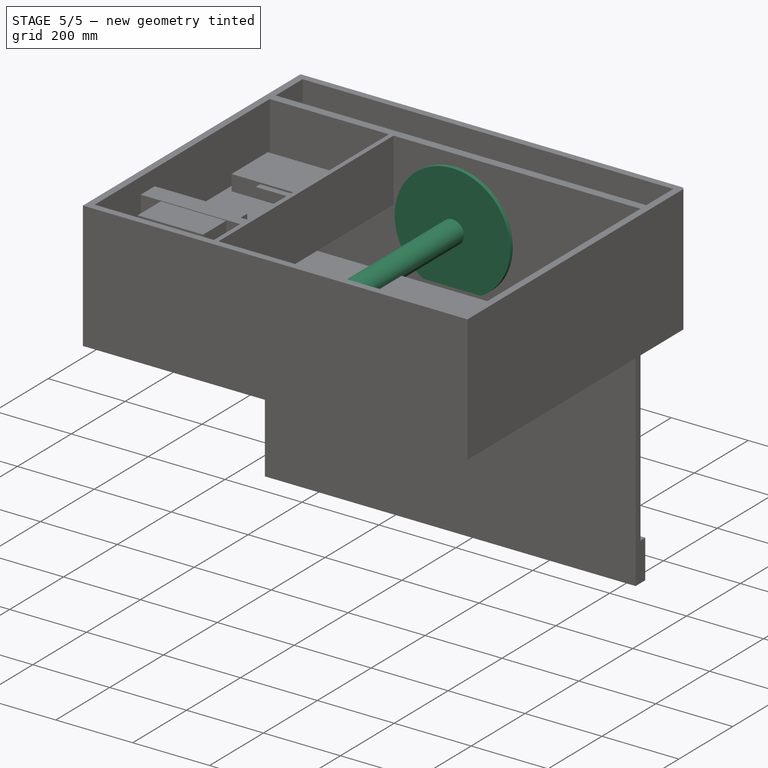
[diagram: stage 5 of 5 — iso view after this stage's code; geometry added in this stage tinted green]
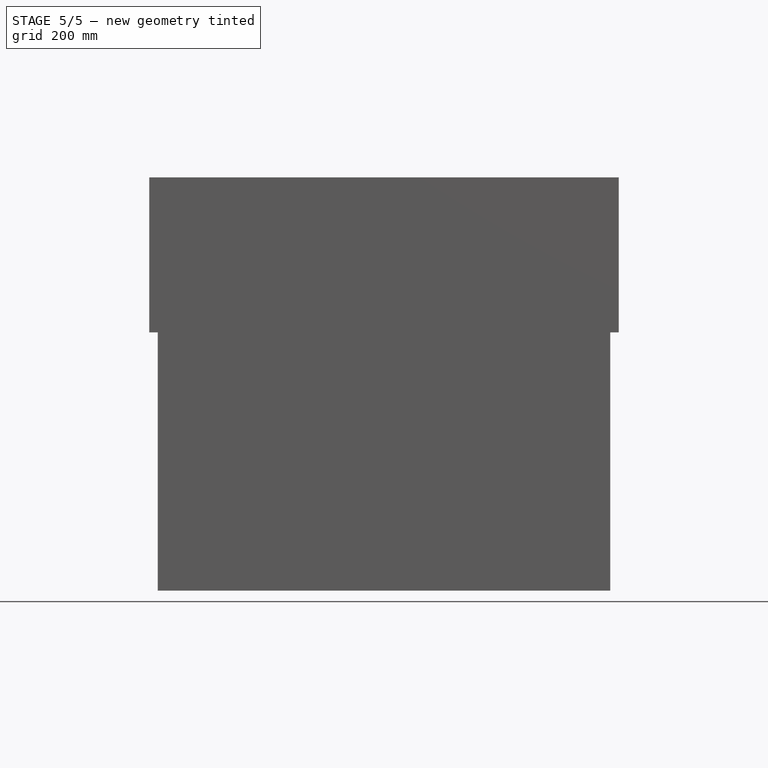
[diagram: stage 5 of 5 — front view after this stage's code; geometry added in this stage tinted green]
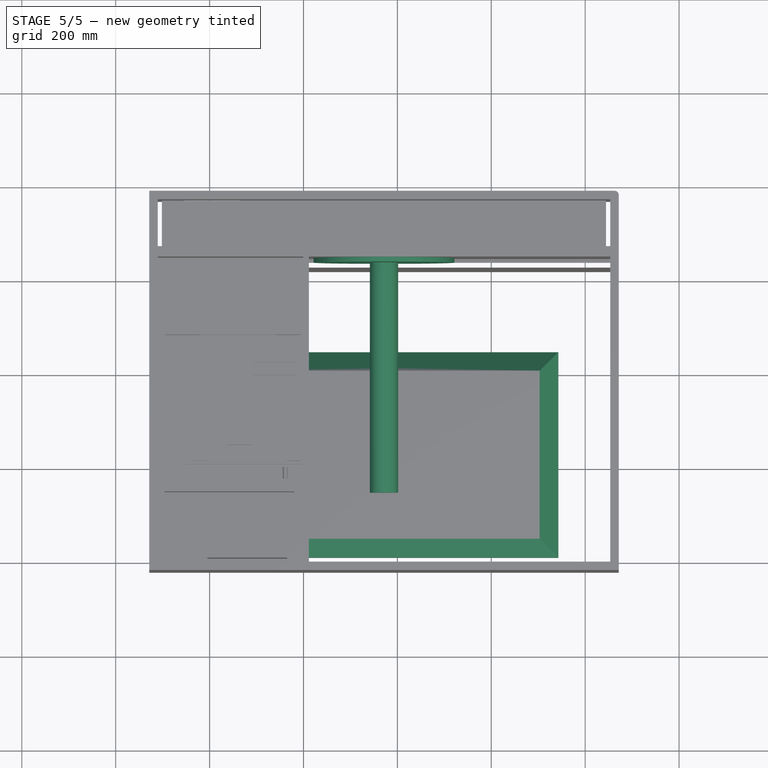
[diagram: stage 5 of 5 — top view after this stage's code; geometry added in this stage tinted green]
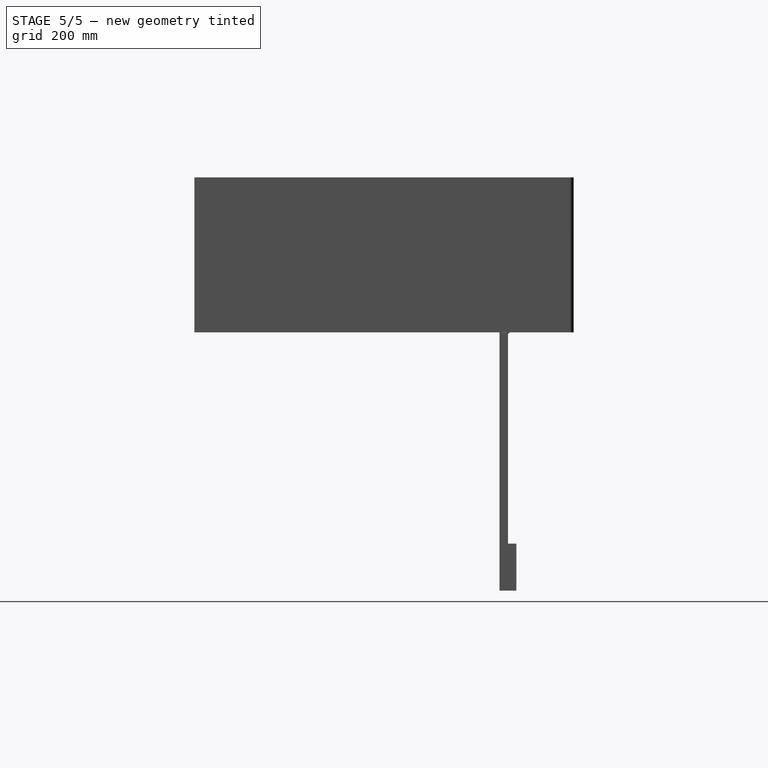
[diagram: stage 5 of 5 — right view after this stage's code; geometry added in this stage tinted green]
FEATURE [PartDesign::Chamfer] Chamfer
  Base = -> Pad [Edge4,Edge7,Edge10,Edge12]
  BaseFeature = -> Pad
  Size = 40
FEATURE [Sketcher::SketchObject] Sketch001  label="Bezel"
  ExternalGeometry = -> [Chamfer]
  MapMode = 5
  Placement = pos=(0,0,0) rot=(1,0,0;3.14159rad)
  Support = -> [Chamfer]
  expr: Constraints[12] = Bezel.Constraints.monitorBezelWidth
  expr: Constraints[11] = Bezel.Constraints.monitorBezelWidth
  expr: Constraints[10] = Bezel.Constraints.monitorBezelWidth
  sketch-geometry (4):
    g0: LineSegment StartX=12 StartY=-12 StartZ=0 EndX=731 EndY=-12 EndZ=0
    g1: LineSegment StartX=731 StartY=-12 StartZ=0 EndX=731 EndY=-426 EndZ=0
    g2: LineSegment StartX=731 StartY=-426 StartZ=0 EndX=12 EndY=-426 EndZ=0
    g3: LineSegment StartX=12 StartY=-426 StartZ=0 EndX=12 EndY=-12 EndZ=0
  constraints (13):
    c: Coincident(g0,g1)
    c: Coincident(g1,g2)
    c: Coincident(g2,g3)
    c: Coincident(g3,g0)
    c: Horizontal(g0)
    c: Horizontal(g2)
    c: Vertical(g1)
    c: Vertical(g3)
    c: Distance(g-8) = 743
    c: Distance(g0,g-8) = 12  'monitorBezelWidth'
    c: Distance(g0,g-6) = 12
    c: Distance(g2,g-5) = 12
    c: Distance(g1,g-7) = 12
FEATURE [PartDesign::Pocket] Pocket
  BaseFeature = -> Chamfer
  Length = 5
  Length2 = 100
  Profile = -> Sketch001
  Type = 0
FEATURE [Sketcher::SketchObject] Sketch002
  ExternalGeometry = -> [Pocket]
  MapMode = 5
  Placement = pos=(0,0,0) rot=(1,0,0;3.14159rad)
  Support = -> [Pocket]
  sketch-geometry (2):
    g0: GeomPoint X=371.5 Y=-438 Z=0
    g1: LineSegment StartX=371.5 StartY=-438 StartZ=0 EndX=371.5 EndY=-638 EndZ=0
  constraints (4):
    c: Symmetric(g-3,g-3,g0)
    c: Coincident(g1,g0)
    c: Vertical(g1)
    c: Distance(g1) = 200  'monitorMaxHeight'
FEATURE [PartDesign::Plane] DatumPlane
  Length = 844.747
  MapMode = 6
  Placement = pos=(371.5,638,0) rot=(0,0.707107,0.707107;3.14159rad)
  ResizeMode = 0
  Support = -> [Sketch002,Pocket]
  Width = 371.212
FEATURE [Sketcher::SketchObject] Sketch003
  MapMode = 5
  Placement = pos=(371.5,638,0) rot=(0,0.707107,0.707107;3.14159rad)
  Support = -> [DatumPlane]
  sketch-geometry (2):
    g0: ArcOfCircle CenterX=0 CenterY=70 CenterZ=0 NormalX=0 NormalY=0 NormalZ=1 AngleXU=0 Radius=150 StartAngle=5.2347 EndAngle=10.4733
    g1: LineSegment StartX=-74.8331 StartY=-60 StartZ=0 EndX=74.8331 EndY=-60 EndZ=0
  constraints (7):
    c: PointOnObject(g0,g-2)
    c: Distance(g0,g-1) = 70
    c: Distance(g0,g-1) = 60
    c: Distance(g0,g-1) = 60
    c: Radius(g0) = 150
    c: Coincident(g1,g0)
    c: Coincident(g1,g0)
FEATURE [Sketcher::SketchObject] Sketch004
  MapMode = 5
  Placement = pos=(371.5,638,0) rot=(0,0.707107,0.707107;3.14159rad)
  Support = -> [DatumPlane]
  sketch-geometry (1):
    g0: Circle CenterX=0 CenterY=70 CenterZ=0 NormalX=0 NormalY=0 NormalZ=1 AngleXU=0 Radius=30
  constraints (3):
    c: PointOnObject(g0,g-2)
    c: Radius(g0) = 30
    c: Distance(g0,g-1) = 70
FEATURE [PartDesign::Pad] Pad001
  BaseFeature = -> Pocket
  Length = 500
  Length2 = 100
  Profile = -> Sketch004
  Reversed = true
  Type = 0
FEATURE [PartDesign::Pad] Pad002
  BaseFeature = -> Pad001
  Length = 10
  Length2 = 100
  Profile = -> Sketch003
  Reversed = true
  Type = 0
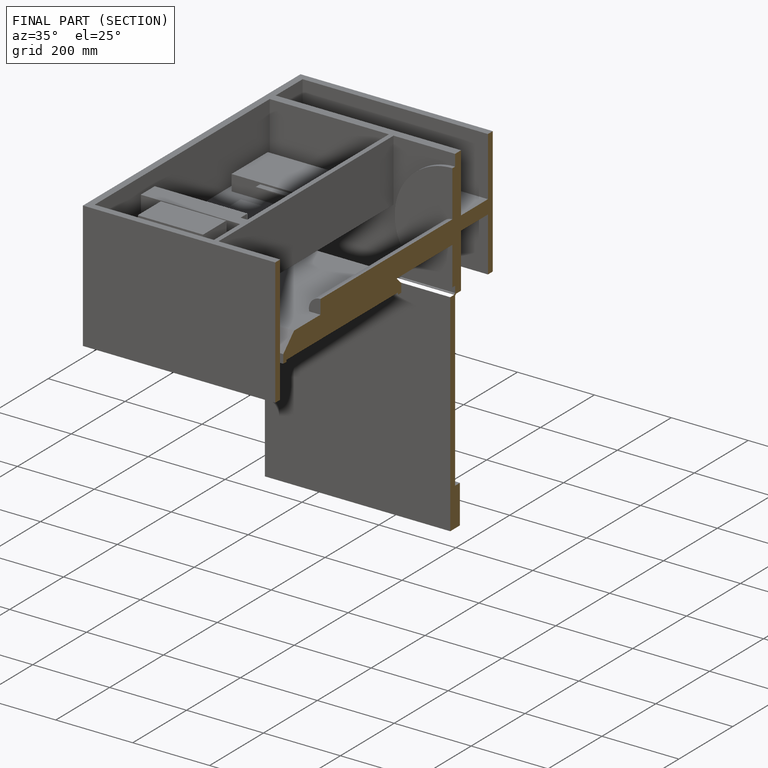
[diagram: finished part — half-section view (interior)]
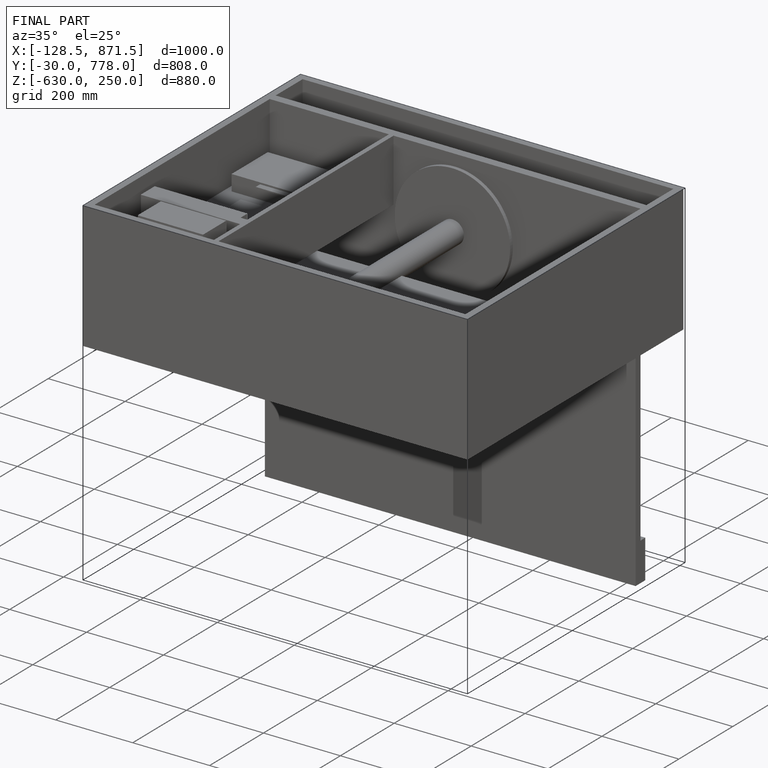
[diagram: finished part — iso view with bounding-box wireframe]
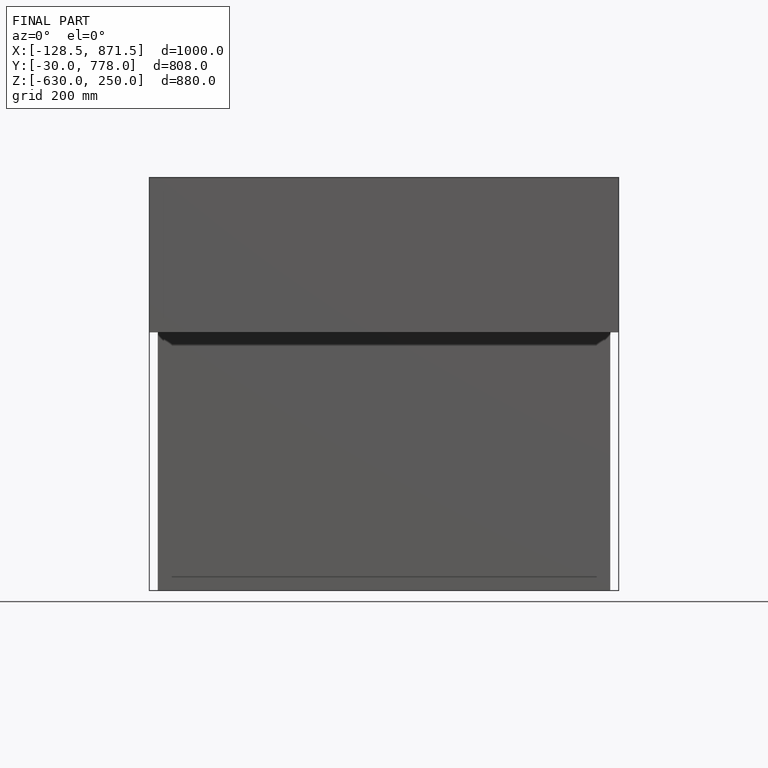
[diagram: finished part — front view with bounding-box wireframe]
